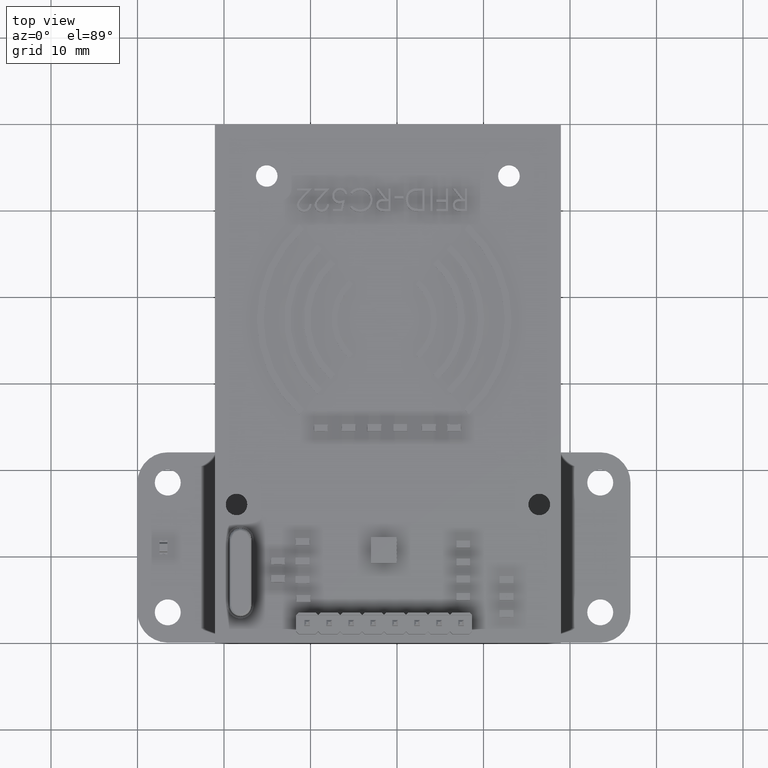
[diagram: clean part render]
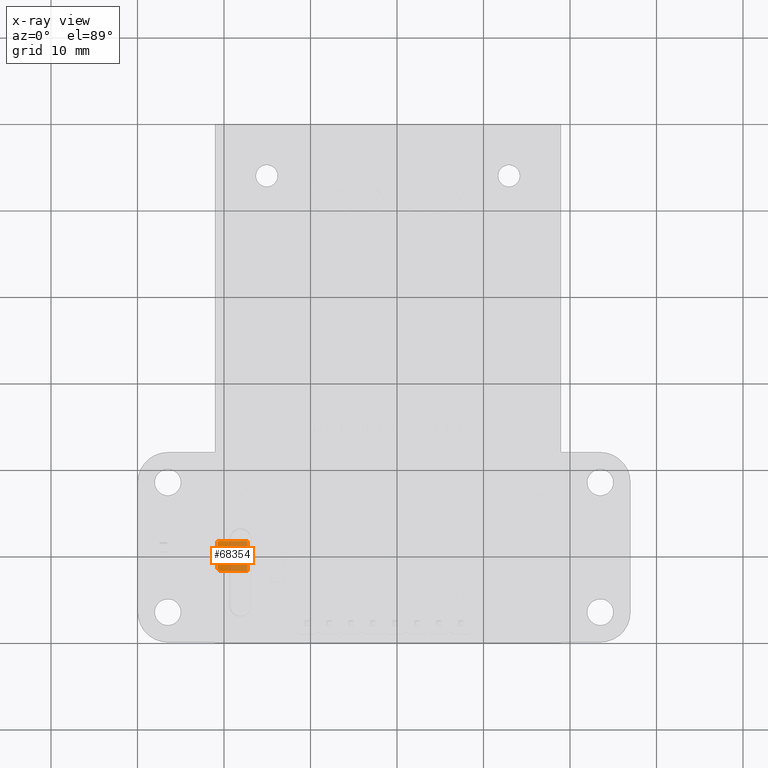
[diagram: x-ray — body ghosted, one internal face saturated and labeled with its STEP entity id]
A machine part, top view, then the same camera in x-ray: the body is ghosted and one INTERNAL B-rep face — a face not visible from any outside direction — is saturated and labeled: STEP entity #68354.
In plain terms, the highlighted planar face has unit normal (-0, -0, 1).
Its self-contained STEP definition (entity closure, byte-faithful):
#68138 = VERTEX_POINT('',#68139);
#68139 = CARTESIAN_POINT('',(1.635,0.,1.75));
#68145 = EDGE_CURVE('',#68146,#68138,#68148,.T.);
#68146 = VERTEX_POINT('',#68147);
#68147 = CARTESIAN_POINT('',(1.75,0.,1.635));
#68148 = CIRCLE('',#68149,0.115);
#68149 = AXIS2_PLACEMENT_3D('',#68150,#68151,#68152);
#68150 = CARTESIAN_POINT('',(1.635,0.,1.635));
#68151 = DIRECTION('',(0.,-1.,0.));
#68152 = DIRECTION('',(0.,0.,-1.));
#68177 = EDGE_CURVE('',#68178,#68146,#68180,.T.);
#68178 = VERTEX_POINT('',#68179);
#68179 = CARTESIAN_POINT('',(1.75,0.,-1.635));
#68180 = LINE('',#68181,#68182);
#68181 = CARTESIAN_POINT('',(1.75,0.,-1.635));
#68182 = VECTOR('',#68183,1.);
#68183 = DIRECTION('',(0.,0.,1.));
#68209 = EDGE_CURVE('',#68210,#68178,#68212,.T.);
#68210 = VERTEX_POINT('',#68211);
#68211 = CARTESIAN_POINT('',(1.635,0.,-1.75));
#68212 = CIRCLE('',#68213,0.115);
#68213 = AXIS2_PLACEMENT_3D('',#68214,#68215,#68216);
#68214 = CARTESIAN_POINT('',(1.635,0.,-1.635));
#68215 = DIRECTION('',(0.,-1.,0.));
#68216 = DIRECTION('',(0.,0.,-1.));
#68235 = VERTEX_POINT('',#68236);
#68236 = CARTESIAN_POINT('',(-1.45,-0.,-1.75));
#68249 = EDGE_CURVE('',#68235,#68210,#68250,.T.);
#68250 = LINE('',#68251,#68252);
#68251 = CARTESIAN_POINT('',(1.635,0.,-1.75));
#68252 = VECTOR('',#68253,1.);
#68253 = DIRECTION('',(1.,0.,1.989361784377E-16));
#68266 = VERTEX_POINT('',#68267);
#68267 = CARTESIAN_POINT('',(-1.75,-0.,-1.45));
#68273 = EDGE_CURVE('',#68274,#68266,#68276,.T.);
#68274 = VERTEX_POINT('',#68275);
#68275 = CARTESIAN_POINT('',(-1.75,0.,1.635));
#68276 = LINE('',#68277,#68278);
#68277 = CARTESIAN_POINT('',(-1.75,-0.,-1.635));
#68278 = VECTOR('',#68279,1.);
#68279 = DIRECTION('',(-0.,-0.,-1.));
#68313 = EDGE_CURVE('',#68314,#68274,#68316,.T.);
#68314 = VERTEX_POINT('',#68315);
#68315 = CARTESIAN_POINT('',(-1.635,0.,1.75));
#68316 = CIRCLE('',#68317,0.115);
#68317 = AXIS2_PLACEMENT_3D('',#68318,#68319,#68320);
#68318 = CARTESIAN_POINT('',(-1.635,0.,1.635));
#68319 = DIRECTION('',(0.,-1.,0.));
#68320 = DIRECTION('',(0.,0.,-1.));
#68343 = EDGE_CURVE('',#68138,#68314,#68344,.T.);
#68344 = LINE('',#68345,#68346);
#68345 = CARTESIAN_POINT('',(1.635,0.,1.75));
#68346 = VECTOR('',#68347,1.);
#68347 = DIRECTION('',(-1.,0.,-1.989361784377E-16));
#68354 = ADVANCED_FACE('',(#68355),#68370,.T.);
#68355 = FACE_BOUND('',#68356,.T.);
#68356 = EDGE_LOOP('',(#68357,#68363,#68364,#68365,#68366,#68367,#68368,
    #68369));
#68357 = ORIENTED_EDGE('',*,*,#68358,.F.);
#68358 = EDGE_CURVE('',#68235,#68266,#68359,.T.);
#68359 = LINE('',#68360,#68361);
#68360 = CARTESIAN_POINT('',(-1.75,-0.,-1.45));
#68361 = VECTOR('',#68362,1.);
#68362 = DIRECTION('',(-0.707106781187,-0.,0.707106781187));
#68363 = ORIENTED_EDGE('',*,*,#68249,.T.);
#68364 = ORIENTED_EDGE('',*,*,#68209,.T.);
#68365 = ORIENTED_EDGE('',*,*,#68177,.T.);
#68366 = ORIENTED_EDGE('',*,*,#68145,.T.);
#68367 = ORIENTED_EDGE('',*,*,#68343,.T.);
#68368 = ORIENTED_EDGE('',*,*,#68313,.T.);
#68369 = ORIENTED_EDGE('',*,*,#68273,.T.);
#68370 = PLANE('',#68371);
#68371 = AXIS2_PLACEMENT_3D('',#68372,#68373,#68374);
#68372 = CARTESIAN_POINT('',(1.635,0.,1.635));
#68373 = DIRECTION('',(0.,-1.,0.));
#68374 = DIRECTION('',(0.,-0.,-1.));